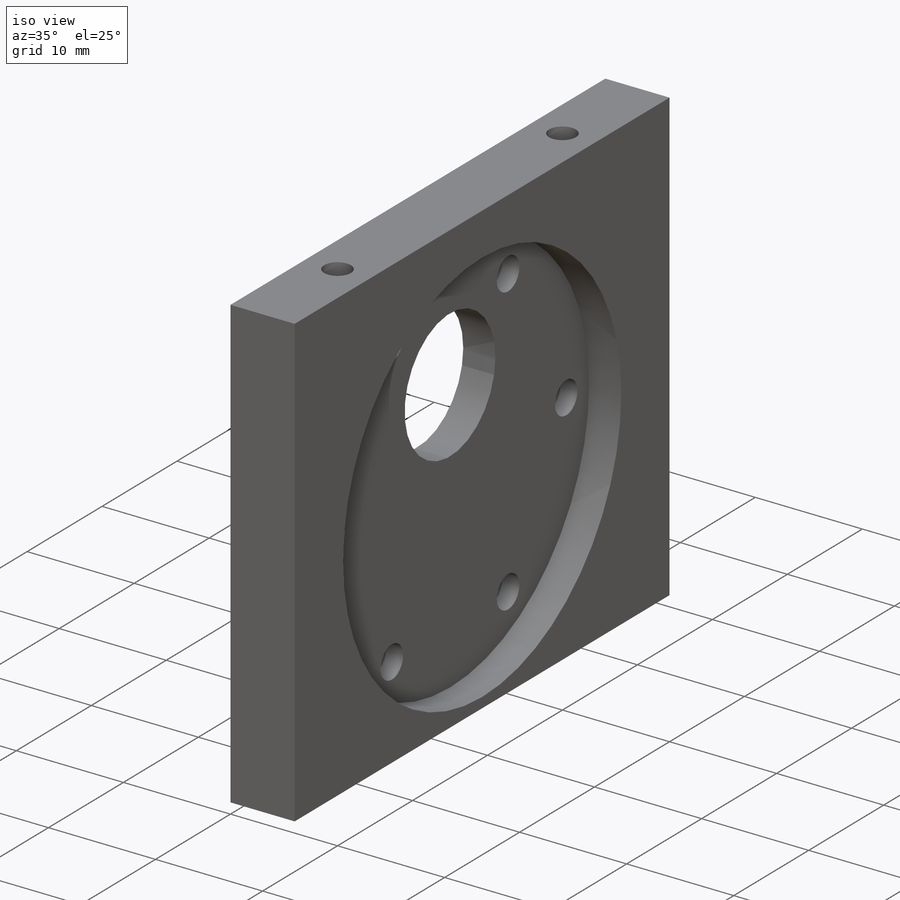
[diagram: iso view]
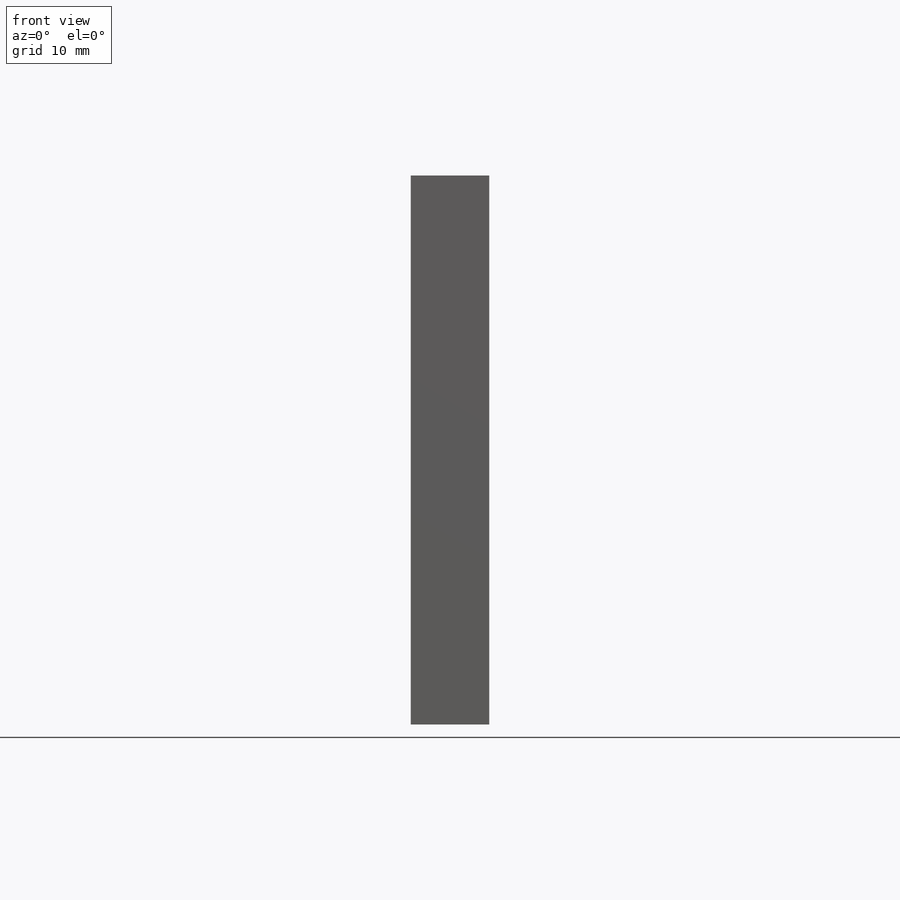
[diagram: front view]
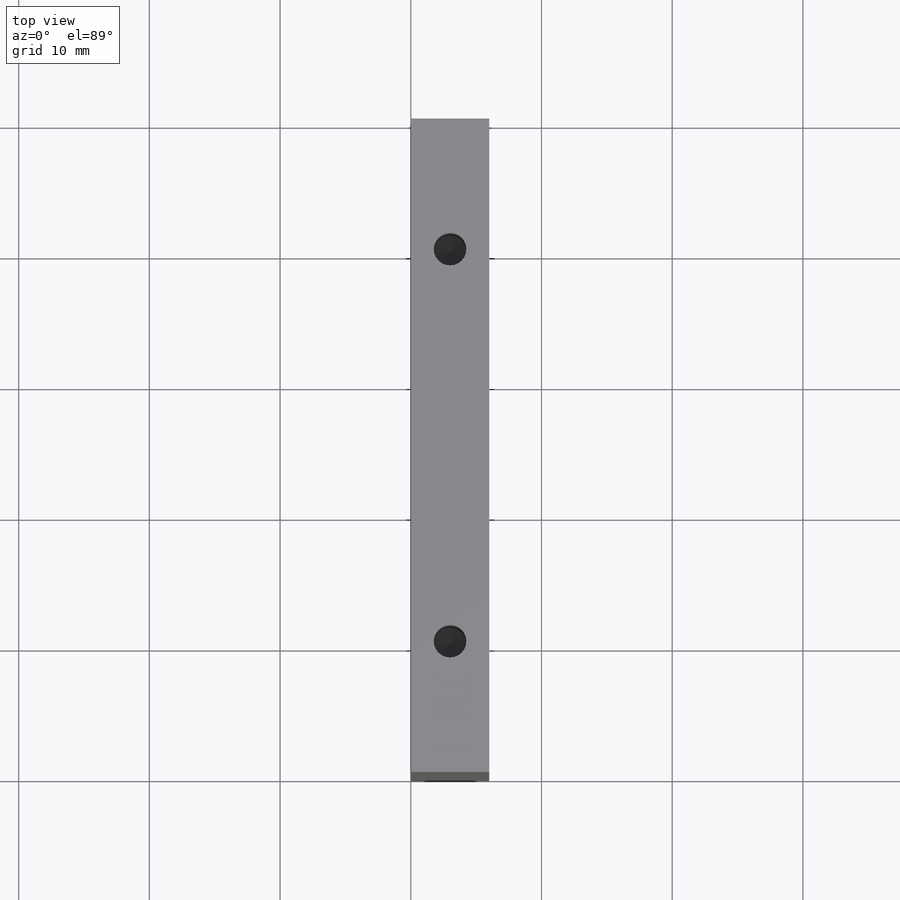
[diagram: top view]
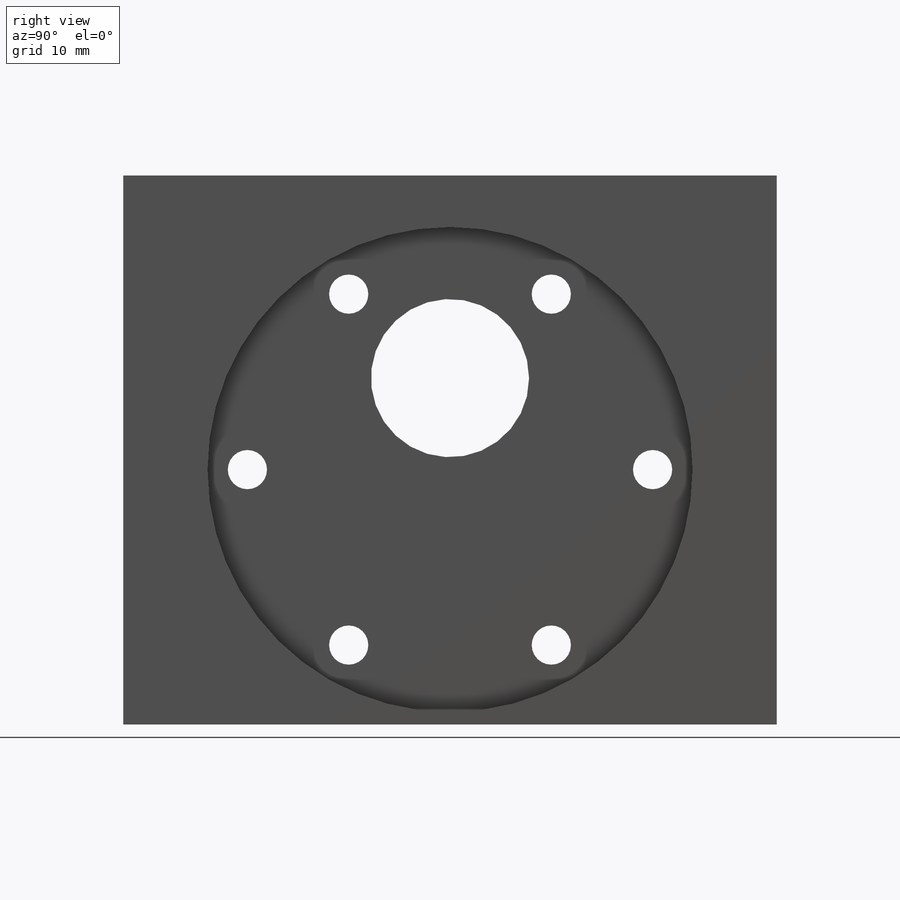
[diagram: right view]
SOLIDWORKS PART (.sldprt)
format: sldprt  version: not decoded by parser v0  size: 307,200 bytes
history: native  units: mm
features: sketch x7, hole x2, cut_extrude x2, material x1, extrude x1, pattern_circular x1, chamfer x1 (+11 scaffold rows collapsed)
feature tree (26):
  scaffold x11  (default folders/planes/origin — collapsed)
  material  "1060 Alloy"
  sketch  "Sketch1"  dims[D1=50.0mm D2=6.0mm]
  extrude  "Boss-Extrude1"  Depth=42mm
  hole  "Tap Drill for M3 Tap1"  Diameter=2.5mm Depth=10mm
  sketch  "Sketch3"  dims[D1=10.0mm D2=3.0mm D3=10.0mm]
  sketch  "Sketch2"  dims[hole-wizard template sketch: 50 standard entries collapsed; hole parameters above]
  hole  "Tap Drill for M3 Tap2"  Diameter=2.5mm Depth=7mm
  sketch  "Sketch5"  dims[c1.D1=3.0mm c1.D2=10.0mm c1.D3=10.0mm c2.D2=10.0mm]
  sketch  "Sketch4"  dims[hole-wizard template sketch: 50 standard entries collapsed; hole parameters above]
  sketch  "Sketch6"  dims[D2=37.1mm D1=25.0mm D3=19.5mm D4=19.5mm]
  cut_extrude  "Cut-Extrude1"  Depth=3mm
  sketch  "Sketch7"  dims[c1.D1=12.1mm c1.D4=3.0mm c1.D2=25.0mm c1.D3=7.0mm c1.D5=15.5mm c1.D6=19.5mm c2.D3=7.0mm c2.D6=18.55mm]
  cut_extrude  "Cut-Extrude2"  [1 undecoded]
  pattern_circular  "CirPattern1"  Count=6 Angle=360deg
  chamfer  "Chamfer1"  Distance=1.4mm Angle=45deg
decode coverage: 13 of 14 modeling features carry decoded parameters
note: ~ marks probable driven/reference dimensions
note: 1 parameter value undecoded
note: suppression state not decoded; provenance and decode notes live in map.json
